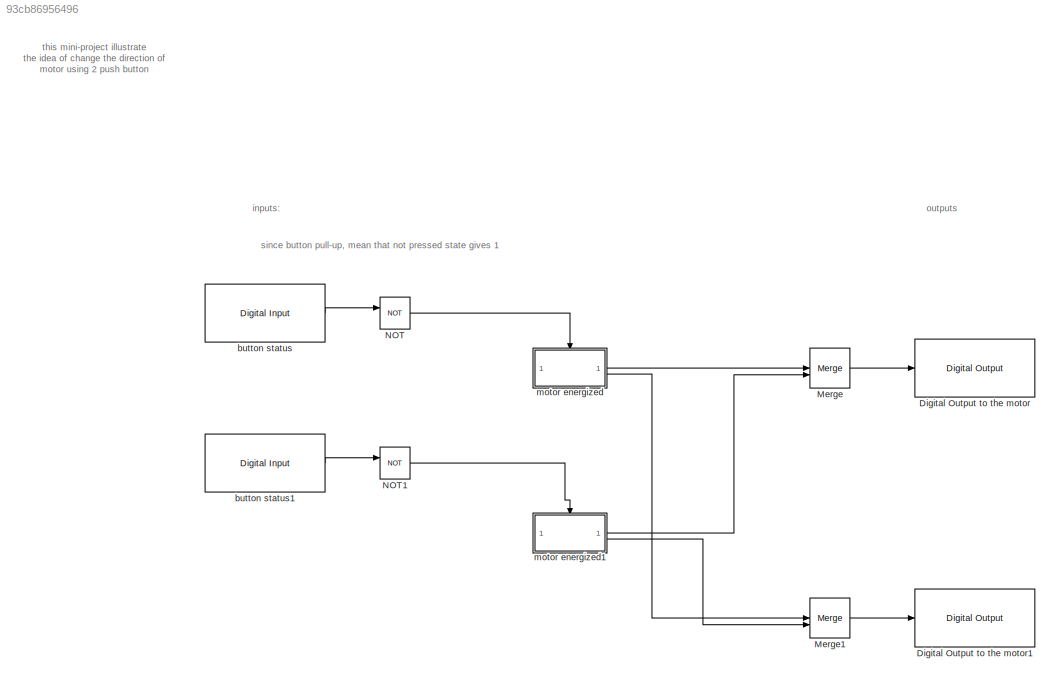
MODEL slx_93cb86956496
KIND model
CONFIG AbsTol = auto
CONFIG EnableMultiTasking = on
CONFIG FixedStep = 1e-3
CONFIG MaxStep = auto
CONFIG MinStep = auto
CONFIG RelTol = 1e-3
CONFIG SampleTimeConstraint = Unconstrained
CONFIG SolverName = FixedStepDiscrete
CONFIG StartTime = 0.0
CONFIG StopTime = inf
BLOCK [Reference] Digital Output to the motor  REF=arduinolib/Digital Output
  SourceBlock = arduinolib/Digital Output
  SourceType = Arduino Digital Output
BLOCK [Reference] Digital Output to the motor1  REF=arduinolib/Digital Output
  SourceBlock = arduinolib/Digital Output
  SourceType = Arduino Digital Output
BLOCK [Merge] Merge
BLOCK [Merge] Merge1
BLOCK [Logic] NOT
  AllPortsSameDT = off
  IconShape = distinctive
  Operator = NOT
  OutDataTypeStr = boolean
BLOCK [Logic] NOT1
  AllPortsSameDT = off
  IconShape = distinctive
  Operator = NOT
  OutDataTypeStr = boolean
BLOCK [Reference] button status  REF=arduinolib/Digital Input
  SourceBlock = arduinolib/Digital Input
  SourceType = Arduino Digital Input
BLOCK [Reference] button status1  REF=arduinolib/Digital Input
  SourceBlock = arduinolib/Digital Input
  SourceType = Arduino Digital Input
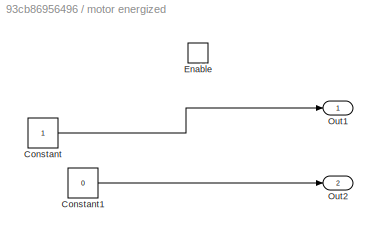
BLOCK [SubSystem] motor energized
  TreatAsAtomicUnit = on
BLOCK [Constant] motor energized/Constant
BLOCK [Constant] motor energized/Constant1
  Value = 0
BLOCK [EnablePort] motor energized/Enable
BLOCK [Outport] motor energized/Out1
BLOCK [Outport] motor energized/Out2
  Port = 2
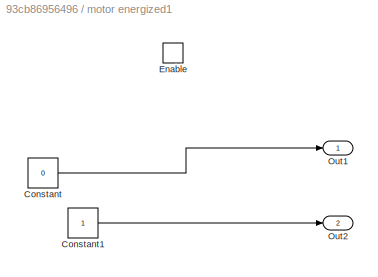
BLOCK [SubSystem] motor energized1
  TreatAsAtomicUnit = on
BLOCK [Constant] motor energized1/Constant
  Value = 0
BLOCK [Constant] motor energized1/Constant1
BLOCK [EnablePort] motor energized1/Enable
BLOCK [Outport] motor energized1/Out1
BLOCK [Outport] motor energized1/Out2
  Port = 2
ANNOTATION (root): inputs:
ANNOTATION (root): outputs
ANNOTATION (root): since button pull-up, mean that not pressed state gives 1
ANNOTATION (root): this mini-project illustrate the idea of change the direction of motor using 2 push button
LINE Merge1:1 -> Digital Output to the motor1:1
LINE Merge:1 -> Digital Output to the motor:1
LINE NOT1:1 -> motor energized1:enable
LINE NOT:1 -> motor energized:enable
LINE button status1:1 -> NOT1:1
LINE button status:1 -> NOT:1
LINE motor energized/Constant1:1 -> motor energized/Out2:1
LINE motor energized/Constant:1 -> motor energized/Out1:1
LINE motor energized1/Constant1:1 -> motor energized1/Out2:1
LINE motor energized1/Constant:1 -> motor energized1/Out1:1
LINE motor energized1:1 -> Merge:2
LINE motor energized1:2 -> Merge1:2
LINE motor energized:1 -> Merge:1
LINE motor energized:2 -> Merge1:1
